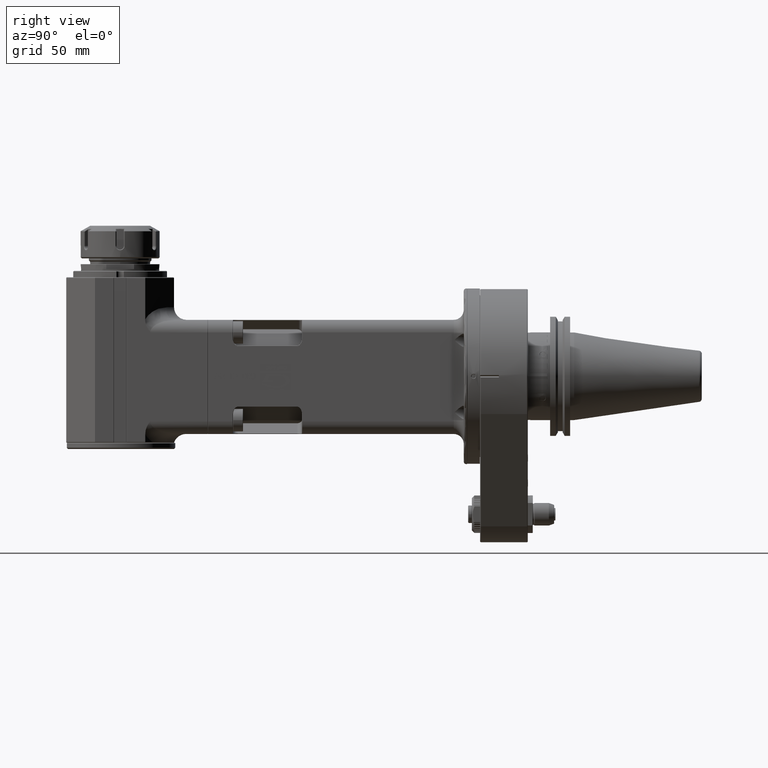
[diagram: clean part render]
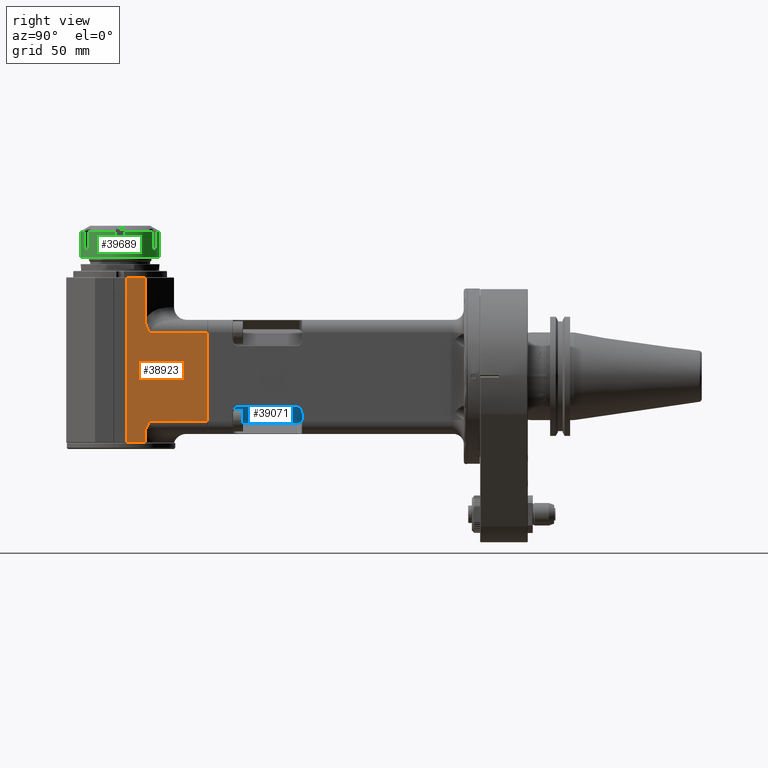
[diagram: same view with three faces highlighted in distinct colors, each labeled with its STEP entity id]
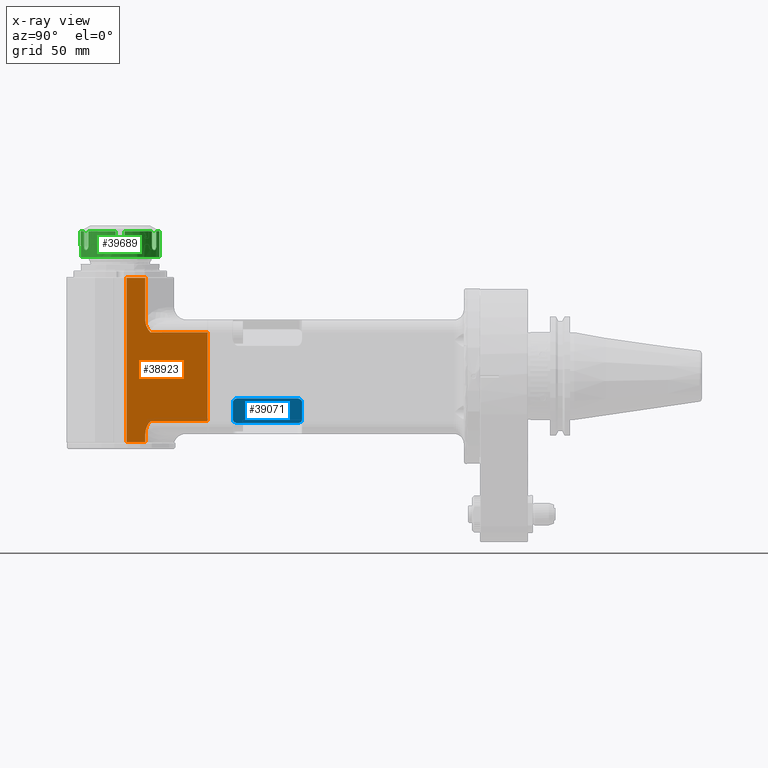
[diagram: x-ray of the same camera — body ghosted, the three highlighted faces saturated]
A machine part, right view with three faces highlighted in distinct colors.
The next image is the same camera in x-ray (body ghosted, the three faces saturated) — at least one of them is partly hidden behind the body in this view.
Their STEP definitions:

[orange] entity #38923 — the highlighted planar face has unit normal (1, 0, -0).
#1005=B_SPLINE_CURVE_WITH_KNOTS('',3,(#61866,#61867,#61868,#61869,#61870,
#61871,#61872,#61873,#61874,#61875,#61876,#61877,#61878,#61879,#61880,#61881,
#61882,#61883,#61884,#61885,#61886,#61887,#61888,#61889,#61890,#61891,#61892,
#61893,#61894,#61895,#61896,#61897,#61898,#61899,#61900,#61901,#61902,#61903,
#61904,#61905,#61906,#61907,#61908,#61909,#61910,#61911,#61912,#61913,#61914,
#61915,#61916,#61917,#61918,#61919,#61920,#61921,#61922,#61923,#61924,#61925,
#61926,#61927,#61928,#61929,#61930,#61931,#61932,#61933,#61934,#61935,#61936,
#61937,#61938,#61939,#61940,#61941,#61942,#61943,#61944,#61945,#61946,#61947,
#61948,#61949,#61950,#61951,#61952,#61953,#61954,#61955,#61956,#61957,#61958,
#61959,#61960,#61961,#61962,#61963,#61964,#61965),.UNSPECIFIED.,.F.,.F.,
(4,3,3,3,3,3,3,3,3,3,3,3,3,3,3,3,3,3,3,3,3,3,3,3,3,3,3,3,3,3,3,3,3,4),(0.,
0.05,0.1,0.15,0.169998769365105,0.2,0.25,0.3,0.35,0.371493647290823,0.4,
0.44197896258168,0.45,0.5,0.55,0.585493620575733,0.6,0.626985457176115,
0.65,0.675,0.7,0.726148783400618,0.75,0.77463575109164,0.796982197235437,
0.8,0.846893567940967,0.85,0.884300240257056,0.9,0.933191122290517,0.95,
0.981823261432821,1.),.UNSPECIFIED.);
#1006=B_SPLINE_CURVE_WITH_KNOTS('',3,(#61970,#61971,#61972,#61973,#61974,
#61975,#61976,#61977,#61978,#61979,#61980,#61981,#61982,#61983,#61984,#61985,
#61986,#61987,#61988,#61989,#61990,#61991,#61992,#61993,#61994,#61995,#61996,
#61997,#61998,#61999,#62000,#62001,#62002,#62003,#62004,#62005,#62006,#62007,
#62008,#62009,#62010,#62011,#62012,#62013,#62014,#62015,#62016,#62017,#62018,
#62019,#62020,#62021,#62022,#62023,#62024,#62025,#62026,#62027,#62028,#62029,
#62030,#62031,#62032,#62033,#62034,#62035,#62036,#62037,#62038,#62039,#62040,
#62041,#62042,#62043,#62044,#62045,#62046,#62047,#62048,#62049,#62050,#62051,
#62052,#62053,#62054,#62055,#62056,#62057,#62058,#62059,#62060,#62061,#62062,
#62063,#62064,#62065,#62066),.UNSPECIFIED.,.F.,.F.,(4,3,3,3,3,3,3,3,3,3,
3,3,3,3,3,3,3,3,3,3,3,3,3,3,3,3,3,3,3,3,3,3,4),(2.49694212659541E-11,0.0347750507592252,
0.05,0.0852990601411845,0.1,0.136871344078224,0.15,0.194542851967867,0.2,
0.218509755875437,0.244861576484745,0.25,0.277303247226577,0.3,0.326758181118669,
0.35,0.378253217125548,0.4,0.432810547298455,0.45,0.5,0.55,0.594590287880488,
0.6,0.65,0.694046624015776,0.7,0.75,0.8,0.85,0.9,0.95,1.),.UNSPECIFIED.);
#2258=LINE('',#58580,#5290);
#2537=LINE('',#61837,#5569);
#2549=LINE('',#61859,#5581);
#2550=LINE('',#61862,#5582);
#2551=LINE('',#61864,#5583);
#2552=LINE('',#61966,#5584);
#2553=LINE('',#61968,#5585);
#2554=LINE('',#62067,#5586);
#5290=VECTOR('',#46255,70.99999985232);
#5569=VECTOR('',#47112,14.8);
#5581=VECTOR('',#47130,131.);
#5582=VECTOR('',#47133,14.8);
#5583=VECTOR('',#47134,6.07989039740604);
#5584=VECTOR('',#47135,45.6578613092001);
#5585=VECTOR('',#47136,45.6578532320314);
#5586=VECTOR('',#47137,33.0798929774);
#9307=FACE_OUTER_BOUND('',#11781,.T.);
#11781=EDGE_LOOP('',(#27408,#27409,#27410,#27411,#27412,#27413,#27414,#27415,
#27416,#27417));
#16236=VERTEX_POINT('',#58573);
#16238=VERTEX_POINT('',#58579);
#16632=VERTEX_POINT('',#61834);
#16633=VERTEX_POINT('',#61836);
#16640=VERTEX_POINT('',#61857);
#16641=VERTEX_POINT('',#61861);
#16642=VERTEX_POINT('',#61863);
#16643=VERTEX_POINT('',#61865);
#16644=VERTEX_POINT('',#61967);
#16645=VERTEX_POINT('',#61969);
#20193=EDGE_CURVE('',#16236,#16238,#2258,.T.);
#20736=EDGE_CURVE('',#16633,#16632,#2537,.T.);
#20748=EDGE_CURVE('',#16632,#16640,#2549,.T.);
#20749=EDGE_CURVE('',#16641,#16640,#2550,.T.);
#20750=EDGE_CURVE('',#16642,#16641,#2551,.T.);
#20751=EDGE_CURVE('',#16642,#16643,#1005,.T.);
#20752=EDGE_CURVE('',#16643,#16238,#2552,.T.);
#20753=EDGE_CURVE('',#16236,#16644,#2553,.T.);
#20754=EDGE_CURVE('',#16644,#16645,#1006,.T.);
#20755=EDGE_CURVE('',#16633,#16645,#2554,.T.);
#27408=ORIENTED_EDGE('',*,*,#20736,.T.);
#27409=ORIENTED_EDGE('',*,*,#20748,.T.);
#27410=ORIENTED_EDGE('',*,*,#20749,.F.);
#27411=ORIENTED_EDGE('',*,*,#20750,.F.);
#27412=ORIENTED_EDGE('',*,*,#20751,.T.);
#27413=ORIENTED_EDGE('',*,*,#20752,.T.);
#27414=ORIENTED_EDGE('',*,*,#20193,.F.);
#27415=ORIENTED_EDGE('',*,*,#20753,.T.);
#27416=ORIENTED_EDGE('',*,*,#20754,.T.);
#27417=ORIENTED_EDGE('',*,*,#20755,.F.);
#37769=PLANE('',#41764);
#38923=ADVANCED_FACE('',(#9307),#37769,.T.);
#41764=AXIS2_PLACEMENT_3D('',#61860,#47131,#47132);
#46255=DIRECTION('',(0.,0.,-1.));
#47112=DIRECTION('',(0.,-1.,0.));
#47130=DIRECTION('',(0.,0.,-1.));
#47131=DIRECTION('center_axis',(1.,0.,0.));
#47132=DIRECTION('ref_axis',(0.,0.,-1.));
#47133=DIRECTION('',(0.,-1.,0.));
#47134=DIRECTION('',(2.85207646252398E-8,1.14078608179399E-7,-0.999999999999993));
#47135=DIRECTION('',(3.35701694183999E-8,0.999999999999998,-5.74699868548999E-8));
#47136=DIRECTION('',(-1.22029999403696E-7,-0.99999999999997,-2.12339582944294E-7));
#47137=DIRECTION('',(1.700506319271E-9,6.802089715873E-9,-1.));
#58573=CARTESIAN_POINT('',(44.4999999988207,-217.199999999051,34.9999999273133));
#58579=CARTESIAN_POINT('',(44.4999999987437,-217.199999998758,-35.9999999261601));
#58580=CARTESIAN_POINT('',(44.49999999817,-217.1999999982,34.99999992616));
#61834=CARTESIAN_POINT('',(44.5,-281.8,78.5));
#61836=CARTESIAN_POINT('',(44.5,-267.,78.5));
#61837=CARTESIAN_POINT('',(44.5,-267.,78.5));
#61857=CARTESIAN_POINT('',(44.5,-281.8,-52.5));
#61859=CARTESIAN_POINT('',(44.5,-281.8,78.5));
#61860=CARTESIAN_POINT('Origin',(44.5,-330.,79.));
#61861=CARTESIAN_POINT('',(44.5,-267.,-52.5));
#61862=CARTESIAN_POINT('',(44.5,-267.,-52.5));
#61863=CARTESIAN_POINT('',(44.5000004349639,-267.000000062127,-46.4201096455839));
#61864=CARTESIAN_POINT('',(44.4999998266,-267.0000006936,-46.42010960259));
#61865=CARTESIAN_POINT('',(44.4999974424952,-262.857861307402,-35.9999973022689));
#61866=CARTESIAN_POINT('Ctrl Pts',(44.5000007564749,-266.999999763719,-46.4201096025948));
#61867=CARTESIAN_POINT('Ctrl Pts',(44.5000027304285,-267.000000628573,-46.205718755625));
#61868=CARTESIAN_POINT('Ctrl Pts',(44.5000074110613,-266.995844114103,-45.9923590461118));
#61869=CARTESIAN_POINT('Ctrl Pts',(44.5000082900646,-266.987573846017,-45.7798898736026));
#61870=CARTESIAN_POINT('Ctrl Pts',(44.500009169068,-266.979303577931,-45.5674207010935));
#61871=CARTESIAN_POINT('Ctrl Pts',(44.5000097908512,-266.966916139206,-45.3558421391898));
#61872=CARTESIAN_POINT('Ctrl Pts',(44.5000085010047,-266.950480606558,-45.1455612222609));
#61873=CARTESIAN_POINT('Ctrl Pts',(44.5000072111581,-266.934045073909,-44.9352803053321));
#61874=CARTESIAN_POINT('Ctrl Pts',(44.5000033420384,-266.913561901042,-44.7262969257466));
#61875=CARTESIAN_POINT('Ctrl Pts',(44.5000016482769,-266.889133044319,-44.5189101119877));
#61876=CARTESIAN_POINT('Ctrl Pts',(44.5000009708139,-266.87936210289,-44.4359604908331));
#61877=CARTESIAN_POINT('Ctrl Pts',(44.4999998647812,-266.868959392183,-44.3532667651955));
#61878=CARTESIAN_POINT('Ctrl Pts',(44.4999995989522,-266.857931930927,-44.2708353194863));
#61879=CARTESIAN_POINT('Ctrl Pts',(44.4999992001678,-266.841389042593,-44.1471754697656));
#61880=CARTESIAN_POINT('Ctrl Pts',(44.500000697567,-266.823440237394,-44.0241059485629));
#61881=CARTESIAN_POINT('Ctrl Pts',(44.500001990906,-266.804103280577,-43.9016527635663));
#61882=CARTESIAN_POINT('Ctrl Pts',(44.5000041463826,-266.771876341201,-43.6975724935154));
#61883=CARTESIAN_POINT('Ctrl Pts',(44.5000077994028,-266.735797103315,-43.495202151498));
#61884=CARTESIAN_POINT('Ctrl Pts',(44.5000091492184,-266.695937518602,-43.2945921651448));
#61885=CARTESIAN_POINT('Ctrl Pts',(44.5000104990341,-266.65607793389,-43.0939821787916));
#61886=CARTESIAN_POINT('Ctrl Pts',(44.5000114155433,-266.612436645455,-42.8951327910476));
#61887=CARTESIAN_POINT('Ctrl Pts',(44.5000105531493,-266.565158082003,-42.6983802684436));
#61888=CARTESIAN_POINT('Ctrl Pts',(44.5000096907553,-266.517879518552,-42.5016277458397));
#61889=CARTESIAN_POINT('Ctrl Pts',(44.50000672844,-266.46696382476,-42.3069720234267));
#61890=CARTESIAN_POINT('Ctrl Pts',(44.5000036995927,-266.412576599075,-42.1146807861241));
#61891=CARTESIAN_POINT('Ctrl Pts',(44.5000023975732,-266.389197002156,-42.0320199854902));
#61892=CARTESIAN_POINT('Ctrl Pts',(44.5000003323021,-266.365175349859,-41.9497972364521));
#61893=CARTESIAN_POINT('Ctrl Pts',(44.4999990461978,-266.340524870293,-41.8680211413534));
#61894=CARTESIAN_POINT('Ctrl Pts',(44.4999973404778,-266.307831709591,-41.7595640619884));
#61895=CARTESIAN_POINT('Ctrl Pts',(44.4999969981815,-266.274032473754,-41.6518927900085));
#61896=CARTESIAN_POINT('Ctrl Pts',(44.4999969281562,-266.239153705443,-41.5450354247313));
#61897=CARTESIAN_POINT('Ctrl Pts',(44.4999968250358,-266.187790610179,-41.3876753659292));
#61898=CARTESIAN_POINT('Ctrl Pts',(44.4999968814174,-266.134087584078,-41.2320774771068));
#61899=CARTESIAN_POINT('Ctrl Pts',(44.4999982617065,-266.078034466142,-41.0780605411899));
#61900=CARTESIAN_POINT('Ctrl Pts',(44.4999985254422,-266.067324240621,-41.0486320958433));
#61901=CARTESIAN_POINT('Ctrl Pts',(44.4999988059873,-266.056528074285,-41.0192614166715));
#61902=CARTESIAN_POINT('Ctrl Pts',(44.4999990684854,-266.045645695584,-40.9899473116182));
#61903=CARTESIAN_POINT('Ctrl Pts',(44.5000007047955,-265.977809216751,-40.8072146828793));
#61904=CARTESIAN_POINT('Ctrl Pts',(44.5000048763909,-265.90662994347,-40.6266779026873));
#61905=CARTESIAN_POINT('Ctrl Pts',(44.5000072866566,-265.83213469345,-40.4483119789908));
#61906=CARTESIAN_POINT('Ctrl Pts',(44.5000096969223,-265.757639443429,-40.2699460552944));
#61907=CARTESIAN_POINT('Ctrl Pts',(44.5000105359121,-265.679828056508,-40.0937510189166));
#61908=CARTESIAN_POINT('Ctrl Pts',(44.5000100548527,-265.598721785479,-39.9197012255386));
#61909=CARTESIAN_POINT('Ctrl Pts',(44.5000097133618,-265.541146681274,-39.7961480789897));
#61910=CARTESIAN_POINT('Ctrl Pts',(44.5000069730119,-265.481909685742,-39.6736798763433));
#61911=CARTESIAN_POINT('Ctrl Pts',(44.5000010823453,-265.420950146673,-39.552172218156));
#61912=CARTESIAN_POINT('Ctrl Pts',(44.4999986748072,-265.396035748285,-39.502511570298));
#61913=CARTESIAN_POINT('Ctrl Pts',(44.4999956543065,-265.370833253917,-39.4530115796184));
#61914=CARTESIAN_POINT('Ctrl Pts',(44.4999918693912,-265.34533737885,-39.4036668120134));
#61915=CARTESIAN_POINT('Ctrl Pts',(44.4999848285117,-265.297908739032,-39.3118733276348));
#61916=CARTESIAN_POINT('Ctrl Pts',(44.4999809400309,-265.249472434277,-39.2206045241007));
#61917=CARTESIAN_POINT('Ctrl Pts',(44.4999769253941,-265.200215679898,-39.1302286466257));
#61918=CARTESIAN_POINT('Ctrl Pts',(44.4999735015117,-265.158207064827,-39.0531515940186));
#61919=CARTESIAN_POINT('Ctrl Pts',(44.499970120674,-265.115602340323,-38.9767234816036));
#61920=CARTESIAN_POINT('Ctrl Pts',(44.4999675434708,-265.072537370091,-38.9011503216958));
#61921=CARTESIAN_POINT('Ctrl Pts',(44.4999647439332,-265.025757198785,-38.8190574896916));
#61922=CARTESIAN_POINT('Ctrl Pts',(44.4999641567599,-264.97843553774,-38.7379705922601));
#61923=CARTESIAN_POINT('Ctrl Pts',(44.4999645852977,-264.93082642784,-38.658245271505));
#61924=CARTESIAN_POINT('Ctrl Pts',(44.4999650138354,-264.88321731794,-38.5785199507499));
#61925=CARTESIAN_POINT('Ctrl Pts',(44.4999665805752,-264.835320970881,-38.5001562201717));
#61926=CARTESIAN_POINT('Ctrl Pts',(44.4999726041023,-264.787425511516,-38.4234670834248));
#61927=CARTESIAN_POINT('Ctrl Pts',(44.4999789044185,-264.737329191803,-38.3432539783858));
#61928=CARTESIAN_POINT('Ctrl Pts',(44.4999817253017,-264.687217268145,-38.2648911756912));
#61929=CARTESIAN_POINT('Ctrl Pts',(44.4999851427558,-264.636951526142,-38.1879862531029));
#61930=CARTESIAN_POINT('Ctrl Pts',(44.4999882599348,-264.59110239115,-38.1178385931483));
#61931=CARTESIAN_POINT('Ctrl Pts',(44.4999917123557,-264.545124669747,-38.0489042384266));
#61932=CARTESIAN_POINT('Ctrl Pts',(44.499994515615,-264.498885080685,-37.9809099702898));
#61933=CARTESIAN_POINT('Ctrl Pts',(44.4999974110815,-264.451124539752,-37.9106791768837));
#61934=CARTESIAN_POINT('Ctrl Pts',(44.4999990010577,-264.403083334157,-37.8414536008501));
#61935=CARTESIAN_POINT('Ctrl Pts',(44.5000003550854,-264.354550788725,-37.7728678393772));
#61936=CARTESIAN_POINT('Ctrl Pts',(44.5000015832887,-264.310528184798,-37.7106554871219));
#61937=CARTESIAN_POINT('Ctrl Pts',(44.5000024683379,-264.266100807378,-37.6489699500852));
#61938=CARTESIAN_POINT('Ctrl Pts',(44.5000002609083,-264.22108502073,-37.5875643002698));
#61939=CARTESIAN_POINT('Ctrl Pts',(44.4999999628033,-264.215005809542,-37.5792717002483));
#61940=CARTESIAN_POINT('Ctrl Pts',(44.4999996043371,-264.208915830344,-37.570984241967));
#61941=CARTESIAN_POINT('Ctrl Pts',(44.4999991858526,-264.20281461133,-37.562701364674));
#61942=CARTESIAN_POINT('Ctrl Pts',(44.4999926830313,-264.108007909021,-37.4339939243977));
#61943=CARTESIAN_POINT('Ctrl Pts',(44.4999842396383,-264.010527748767,-37.3063454068812));
#61944=CARTESIAN_POINT('Ctrl Pts',(44.4999802719591,-263.910397402375,-37.1799571070099));
#61945=CARTESIAN_POINT('Ctrl Pts',(44.4999800091229,-263.903764336653,-37.1715846012731));
#61946=CARTESIAN_POINT('Ctrl Pts',(44.4999797628899,-263.89711963148,-37.1632176094147));
#61947=CARTESIAN_POINT('Ctrl Pts',(44.4999795338818,-263.890463289411,-37.1548561828424));
#61948=CARTESIAN_POINT('Ctrl Pts',(44.4999770052469,-263.816966065631,-37.0625319552817));
#61949=CARTESIAN_POINT('Ctrl Pts',(44.4999774348257,-263.74205340931,-36.9708840042916));
#61950=CARTESIAN_POINT('Ctrl Pts',(44.4999784814314,-263.665861939572,-36.8801578839403));
#61951=CARTESIAN_POINT('Ctrl Pts',(44.4999789604793,-263.63098790486,-36.8386311109133));
#61952=CARTESIAN_POINT('Ctrl Pts',(44.4999796155879,-263.595846247004,-36.797296814354));
#61953=CARTESIAN_POINT('Ctrl Pts',(44.4999803926571,-263.560451484486,-36.756175175811));
#61954=CARTESIAN_POINT('Ctrl Pts',(44.4999820354717,-263.48562283039,-36.6692392381906));
#61955=CARTESIAN_POINT('Ctrl Pts',(44.4999846005122,-263.409661408713,-36.5832558016274));
#61956=CARTESIAN_POINT('Ctrl Pts',(44.4999888031279,-263.332764404046,-36.4983942257175));
#61957=CARTESIAN_POINT('Ctrl Pts',(44.4999909314456,-263.293821691102,-36.4554180395187));
#61958=CARTESIAN_POINT('Ctrl Pts',(44.499993421718,-263.254639290837,-36.4127287841906));
#61959=CARTESIAN_POINT('Ctrl Pts',(44.4999958992339,-263.215244286307,-36.3703436020391));
#61960=CARTESIAN_POINT('Ctrl Pts',(44.5000005897693,-263.140660036843,-36.2900982248166));
#61961=CARTESIAN_POINT('Ctrl Pts',(44.5000046991611,-263.065314260903,-36.2109498724042));
#61962=CARTESIAN_POINT('Ctrl Pts',(44.5000026752919,-262.989157581177,-36.1328390789995));
#61963=CARTESIAN_POINT('Ctrl Pts',(44.5000015193029,-262.945658580911,-36.0882239324976));
#61964=CARTESIAN_POINT('Ctrl Pts',(44.4999984335575,-262.901894833736,-36.0439472070703));
#61965=CARTESIAN_POINT('Ctrl Pts',(44.4999953966456,-262.857861307405,-35.9999973024068));
#61966=CARTESIAN_POINT('',(44.49999846542,-262.8578613074,-35.9999973022));
#61967=CARTESIAN_POINT('',(44.4999832815842,-262.857853230419,34.9999902324594));
#61968=CARTESIAN_POINT('',(44.49999999817,-217.1999999982,34.99999992616));
#61969=CARTESIAN_POINT('',(44.5000001179918,-266.999999706981,45.4201070342707));
#61970=CARTESIAN_POINT('Ctrl Pts',(44.4999832815842,-262.857853230418,34.9999902324594));
#61971=CARTESIAN_POINT('Ctrl Pts',(44.4999918421223,-262.942958432712,35.085069775626));
#61972=CARTESIAN_POINT('Ctrl Pts',(44.5000006329318,-263.027021349055,35.1713012951591));
#61973=CARTESIAN_POINT('Ctrl Pts',(44.5000011977094,-263.110077855193,35.2587327924837));
#61974=CARTESIAN_POINT('Ctrl Pts',(44.500001444976,-263.146441025436,35.2970113882214));
#61975=CARTESIAN_POINT('Ctrl Pts',(44.5000000921225,-263.182611127193,35.3355198260365));
#61976=CARTESIAN_POINT('Ctrl Pts',(44.4999983250017,-263.21859387123,35.3742617426));
#61977=CARTESIAN_POINT('Ctrl Pts',(44.4999942279302,-263.302019899504,35.4640849151528));
#61978=CARTESIAN_POINT('Ctrl Pts',(44.4999889583917,-263.384431668572,35.5551600786504));
#61979=CARTESIAN_POINT('Ctrl Pts',(44.4999859712035,-263.465628009027,35.6473995311393));
#61980=CARTESIAN_POINT('Ctrl Pts',(44.4999847271342,-263.499443711571,35.6858143398686));
#61981=CARTESIAN_POINT('Ctrl Pts',(44.4999837382397,-263.533048588003,35.7244304837094));
#61982=CARTESIAN_POINT('Ctrl Pts',(44.4999826740241,-263.566428104524,35.7632390208574));
#61983=CARTESIAN_POINT('Ctrl Pts',(44.4999800048711,-263.65014708104,35.8605744932898));
#61984=CARTESIAN_POINT('Ctrl Pts',(44.4999765857073,-263.73244955321,35.9591250155143));
#61985=CARTESIAN_POINT('Ctrl Pts',(44.4999750830577,-263.813216433587,36.0586900831379));
#61986=CARTESIAN_POINT('Ctrl Pts',(44.4999745480142,-263.841974826015,36.0941418831017));
#61987=CARTESIAN_POINT('Ctrl Pts',(44.4999742778737,-263.870538645357,36.1297218408945));
#61988=CARTESIAN_POINT('Ctrl Pts',(44.4999744806251,-263.8989029186,36.16541937049));
#61989=CARTESIAN_POINT('Ctrl Pts',(44.4999751685193,-263.995137112851,36.2865338079362));
#61990=CARTESIAN_POINT('Ctrl Pts',(44.4999807035004,-264.089071150096,36.4090110932533));
#61991=CARTESIAN_POINT('Ctrl Pts',(44.4999893374302,-264.180644260091,36.5326503496667));
#61992=CARTESIAN_POINT('Ctrl Pts',(44.4999903952124,-264.191863299622,36.5477979591039));
#61993=CARTESIAN_POINT('Ctrl Pts',(44.4999914925349,-264.203046883997,36.5629629485527));
#61994=CARTESIAN_POINT('Ctrl Pts',(44.4999926201371,-264.214194887113,36.5781448984348));
#61995=CARTESIAN_POINT('Ctrl Pts',(44.4999964447798,-264.252007095061,36.6296395957339));
#61996=CARTESIAN_POINT('Ctrl Pts',(44.4999992984772,-264.289407128545,36.6813359816203));
#61997=CARTESIAN_POINT('Ctrl Pts',(44.5000007820074,-264.326474578557,36.7333361958471));
#61998=CARTESIAN_POINT('Ctrl Pts',(44.5000028940677,-264.379246468135,36.80736744327));
#61999=CARTESIAN_POINT('Ctrl Pts',(44.5000024697069,-264.431345854383,36.8820129442369));
#62000=CARTESIAN_POINT('Ctrl Pts',(44.5000010621374,-264.482980764814,36.9576074988017));
#62001=CARTESIAN_POINT('Ctrl Pts',(44.5000007876711,-264.493049216703,36.9723479162688));
#62002=CARTESIAN_POINT('Ctrl Pts',(44.500000459473,-264.503099895912,36.9871245301302));
#62003=CARTESIAN_POINT('Ctrl Pts',(44.5000000638395,-264.513134180539,37.0019399834461));
#62004=CARTESIAN_POINT('Ctrl Pts',(44.4999979616229,-264.566451808622,37.0806625689736));
#62005=CARTESIAN_POINT('Ctrl Pts',(44.4999946409761,-264.619308827795,37.1604755921907));
#62006=CARTESIAN_POINT('Ctrl Pts',(44.4999912325774,-264.671875640059,37.241731242969));
#62007=CARTESIAN_POINT('Ctrl Pts',(44.4999883992301,-264.715573590422,37.3092777659834));
#62008=CARTESIAN_POINT('Ctrl Pts',(44.4999854686929,-264.759070414921,37.3778218393308));
#62009=CARTESIAN_POINT('Ctrl Pts',(44.4999800745239,-264.802443821298,37.4475841265931));
#62010=CARTESIAN_POINT('Ctrl Pts',(44.4999737151054,-264.853578601464,37.5298298970103));
#62011=CARTESIAN_POINT('Ctrl Pts',(44.499970780711,-264.904555020718,37.6137533087545));
#62012=CARTESIAN_POINT('Ctrl Pts',(44.4999688406378,-264.955107085748,37.6990717232544));
#62013=CARTESIAN_POINT('Ctrl Pts',(44.4999671555148,-264.999015972315,37.7731782228051));
#62014=CARTESIAN_POINT('Ctrl Pts',(44.4999662139985,-265.042605046711,37.8483365106343));
#62015=CARTESIAN_POINT('Ctrl Pts',(44.4999666730921,-265.085718255732,37.9243352229224));
#62016=CARTESIAN_POINT('Ctrl Pts',(44.4999672311755,-265.138127529794,38.0167207685847));
#62017=CARTESIAN_POINT('Ctrl Pts',(44.4999690161886,-265.189831892755,38.110351674126));
#62018=CARTESIAN_POINT('Ctrl Pts',(44.4999718526821,-265.240617311208,38.204899238918));
#62019=CARTESIAN_POINT('Ctrl Pts',(44.4999740359594,-265.279707354064,38.2776734420716));
#62020=CARTESIAN_POINT('Ctrl Pts',(44.499976895448,-265.318253548634,38.350989827361));
#62021=CARTESIAN_POINT('Ctrl Pts',(44.4999820529442,-265.356171225427,38.4246819949684));
#62022=CARTESIAN_POINT('Ctrl Pts',(44.4999898343376,-265.413379674835,38.5358653532042));
#62023=CARTESIAN_POINT('Ctrl Pts',(44.4999960996362,-265.469148268292,38.647918771417));
#62024=CARTESIAN_POINT('Ctrl Pts',(44.500000635757,-265.52350953451,38.7608882615185));
#62025=CARTESIAN_POINT('Ctrl Pts',(44.5000030122316,-265.551989413433,38.8200730013875));
#62026=CARTESIAN_POINT('Ctrl Pts',(44.5000048494622,-265.580082732535,38.879509284581));
#62027=CARTESIAN_POINT('Ctrl Pts',(44.5000058044206,-265.607792611779,38.9392083117584));
#62028=CARTESIAN_POINT('Ctrl Pts',(44.500008582166,-265.688394012316,39.1128584803065));
#62029=CARTESIAN_POINT('Ctrl Pts',(44.5000085076619,-265.765755507176,39.2887156323959));
#62030=CARTESIAN_POINT('Ctrl Pts',(44.500005243604,-265.839829624351,39.4667675863651));
#62031=CARTESIAN_POINT('Ctrl Pts',(44.5000019795462,-265.913903741527,39.6448195403342));
#62032=CARTESIAN_POINT('Ctrl Pts',(44.4999954529448,-265.984690598219,39.8250662872214));
#62033=CARTESIAN_POINT('Ctrl Pts',(44.4999903292433,-266.052137671054,40.0074712689371));
#62034=CARTESIAN_POINT('Ctrl Pts',(44.4999857598968,-266.112287358942,40.1701410818478));
#62035=CARTESIAN_POINT('Ctrl Pts',(44.4999809189006,-266.169780359282,40.3345275351604));
#62036=CARTESIAN_POINT('Ctrl Pts',(44.4999779554844,-266.2246253695,40.5007877265857));
#62037=CARTESIAN_POINT('Ctrl Pts',(44.4999775959615,-266.231279188763,40.520958481593));
#62038=CARTESIAN_POINT('Ctrl Pts',(44.4999772513977,-266.237893975205,40.5411568363948));
#62039=CARTESIAN_POINT('Ctrl Pts',(44.4999769148089,-266.244469696272,40.561383087882));
#62040=CARTESIAN_POINT('Ctrl Pts',(44.4999738038409,-266.30524669255,40.7483269680769));
#62041=CARTESIAN_POINT('Ctrl Pts',(44.4999745271867,-266.362691737732,40.9376520802568));
#62042=CARTESIAN_POINT('Ctrl Pts',(44.4999787405163,-266.416686106663,41.129290511347));
#62043=CARTESIAN_POINT('Ctrl Pts',(44.4999824521753,-266.464251500008,41.2981110297711));
#62044=CARTESIAN_POINT('Ctrl Pts',(44.4999894029705,-266.509138411695,41.468727019252));
#62045=CARTESIAN_POINT('Ctrl Pts',(44.4999999896113,-266.551236390448,41.6409550446501));
#62046=CARTESIAN_POINT('Ctrl Pts',(44.5000014205099,-266.556926386022,41.6642335186109));
#62047=CARTESIAN_POINT('Ctrl Pts',(44.500002914773,-266.562565445369,41.6875414096592));
#62048=CARTESIAN_POINT('Ctrl Pts',(44.5000044130728,-266.568153259702,41.7108783403673));
#62049=CARTESIAN_POINT('Ctrl Pts',(44.5000169966874,-266.615083055063,41.9068757943323));
#62050=CARTESIAN_POINT('Ctrl Pts',(44.5000328910465,-266.658399839591,42.1049186713577));
#62051=CARTESIAN_POINT('Ctrl Pts',(44.5000472622114,-266.697968069924,42.3047195665426));
#62052=CARTESIAN_POINT('Ctrl Pts',(44.5000616333762,-266.737536300258,42.5045204617275));
#62053=CARTESIAN_POINT('Ctrl Pts',(44.50007295957,-266.773357099263,42.7060791711519));
#62054=CARTESIAN_POINT('Ctrl Pts',(44.5000795453799,-266.805354400518,42.9093414141849));
#62055=CARTESIAN_POINT('Ctrl Pts',(44.5000861311899,-266.837351701773,43.1126036572178));
#62056=CARTESIAN_POINT('Ctrl Pts',(44.5000880542181,-266.865525456952,43.3175694435845));
#62057=CARTESIAN_POINT('Ctrl Pts',(44.5000842481136,-266.889788371942,43.5241745214027));
#62058=CARTESIAN_POINT('Ctrl Pts',(44.5000804420092,-266.914051286933,43.7307795992208));
#62059=CARTESIAN_POINT('Ctrl Pts',(44.5000722860919,-266.934402273835,43.9390241189578));
#62060=CARTESIAN_POINT('Ctrl Pts',(44.5000606196237,-266.950737932126,44.1486278101111));
#62061=CARTESIAN_POINT('Ctrl Pts',(44.5000489531555,-266.967073590417,44.3582315012645));
#62062=CARTESIAN_POINT('Ctrl Pts',(44.5000343124654,-266.979393569753,44.5691944689703));
#62063=CARTESIAN_POINT('Ctrl Pts',(44.500023317031,-266.98762383144,44.7811488645335));
#62064=CARTESIAN_POINT('Ctrl Pts',(44.5000123215966,-266.995854093127,44.9931032600966));
#62065=CARTESIAN_POINT('Ctrl Pts',(44.5000018139995,-266.999997644712,45.206049008134));
#62066=CARTESIAN_POINT('Ctrl Pts',(44.5000003915053,-266.999999439738,45.420107022605));
#62067=CARTESIAN_POINT('',(44.5,-267.,78.5));

[blue] entity #39071 — the highlighted planar face has unit normal (-0.7071, -0, 0.7071).
#2724=LINE('',#64223,#5756);
#2727=LINE('',#64231,#5759);
#2730=LINE('',#64239,#5762);
#2733=LINE('',#64249,#5765);
#5756=VECTOR('',#47739,19.9999999999987);
#5759=VECTOR('',#47748,47.);
#5762=VECTOR('',#47757,19.9999999999987);
#5765=VECTOR('',#47768,47.);
#9455=FACE_OUTER_BOUND('',#11942,.T.);
#11942=EDGE_LOOP('',(#28084,#28085,#28086,#28087,#28088,#28089,#28090,#28091));
#14462=CIRCLE('',#41982,4.);
#14463=CIRCLE('',#41985,4.);
#14465=CIRCLE('',#41989,4.);
#14466=CIRCLE('',#41992,4.);
#16811=VERTEX_POINT('',#64220);
#16812=VERTEX_POINT('',#64222);
#16813=VERTEX_POINT('',#64226);
#16814=VERTEX_POINT('',#64230);
#16815=VERTEX_POINT('',#64234);
#16816=VERTEX_POINT('',#64238);
#16818=VERTEX_POINT('',#64244);
#16819=VERTEX_POINT('',#64248);
#21046=EDGE_CURVE('',#16811,#16812,#2724,.T.);
#21048=EDGE_CURVE('',#16813,#16812,#14462,.T.);
#21050=EDGE_CURVE('',#16814,#16813,#2727,.T.);
#21052=EDGE_CURVE('',#16815,#16814,#14463,.T.);
#21054=EDGE_CURVE('',#16816,#16815,#2730,.T.);
#21057=EDGE_CURVE('',#16818,#16816,#14465,.T.);
#21059=EDGE_CURVE('',#16818,#16819,#2733,.T.);
#21061=EDGE_CURVE('',#16811,#16819,#14466,.T.);
#28084=ORIENTED_EDGE('',*,*,#21048,.T.);
#28085=ORIENTED_EDGE('',*,*,#21046,.F.);
#28086=ORIENTED_EDGE('',*,*,#21061,.T.);
#28087=ORIENTED_EDGE('',*,*,#21059,.F.);
#28088=ORIENTED_EDGE('',*,*,#21057,.T.);
#28089=ORIENTED_EDGE('',*,*,#21054,.T.);
#28090=ORIENTED_EDGE('',*,*,#21052,.T.);
#28091=ORIENTED_EDGE('',*,*,#21050,.T.);
#37847=PLANE('',#41993);
#39071=ADVANCED_FACE('',(#9455),#37847,.F.);
#41982=AXIS2_PLACEMENT_3D('',#64227,#47743,#47744);
#41985=AXIS2_PLACEMENT_3D('',#64235,#47752,#47753);
#41989=AXIS2_PLACEMENT_3D('',#64245,#47763,#47764);
#41992=AXIS2_PLACEMENT_3D('',#64252,#47772,#47773);
#41993=AXIS2_PLACEMENT_3D('',#64253,#47774,#47775);
#47739=DIRECTION('',(-0.707106781186548,0.,-0.707106781186548));
#47743=DIRECTION('center_axis',(0.707106781186548,0.,-0.707106781186548));
#47744=DIRECTION('ref_axis',(-0.707106781186548,0.,-0.707106781186548));
#47748=DIRECTION('',(0.,1.,0.));
#47752=DIRECTION('center_axis',(0.707106781186548,0.,-0.707106781186548));
#47753=DIRECTION('ref_axis',(0.,-1.,0.));
#47757=DIRECTION('',(-0.707106781186548,0.,-0.707106781186548));
#47763=DIRECTION('center_axis',(0.707106781186548,0.,-0.707106781186548));
#47764=DIRECTION('ref_axis',(0.707106781186548,0.,0.707106781186548));
#47768=DIRECTION('',(0.,1.,0.));
#47772=DIRECTION('center_axis',(0.707106781186548,0.,-0.707106781186548));
#47773=DIRECTION('ref_axis',(0.,1.,0.));
#47774=DIRECTION('center_axis',(-0.707106781186548,0.,0.707106781186548));
#47775=DIRECTION('ref_axis',(-0.707106781186548,0.,-0.707106781186548));
#64220=CARTESIAN_POINT('',(34.64823227814,-142.,-20.50609665441));
#64222=CARTESIAN_POINT('',(20.50609665441,-142.,-34.64823227814));
#64223=CARTESIAN_POINT('',(34.64823227814,-142.,-20.50609665441));
#64226=CARTESIAN_POINT('',(17.67766952966,-146.,-37.47665940289));
#64227=CARTESIAN_POINT('Origin',(20.50609665441,-146.,-34.64823227814));
#64230=CARTESIAN_POINT('',(17.67766952966,-193.,-37.47665940289));
#64231=CARTESIAN_POINT('',(17.67766952966,-193.,-37.47665940289));
#64234=CARTESIAN_POINT('',(20.50609665441,-197.,-34.64823227814));
#64235=CARTESIAN_POINT('Origin',(20.50609665441,-193.,-34.64823227814));
#64238=CARTESIAN_POINT('',(34.64823227814,-197.,-20.50609665441));
#64239=CARTESIAN_POINT('',(34.64823227814,-197.,-20.50609665441));
#64244=CARTESIAN_POINT('',(37.47665940289,-193.,-17.67766952966));
#64245=CARTESIAN_POINT('Origin',(34.64823227814,-193.,-20.50609665441));
#64248=CARTESIAN_POINT('',(37.47665940289,-146.,-17.67766952966));
#64249=CARTESIAN_POINT('',(37.47665940289,-193.,-17.67766952966));
#64252=CARTESIAN_POINT('Origin',(34.64823227814,-146.,-20.50609665441));
#64253=CARTESIAN_POINT('Origin',(37.47665940289,-197.,-17.67766952966));

[green] entity #39689 — the highlighted cylindrical surface (bore or boss wall) has radius 31.5 mm, axis along (0, -0, 1).
#1255=B_SPLINE_CURVE_WITH_KNOTS('',3,(#71399,#71400,#71401,#71402,#71403,
#71404,#71405,#71406,#71407,#71408,#71409,#71410,#71411,#71412),
 .UNSPECIFIED.,.F.,.F.,(4,2,2,2,2,2,4),(1.38440095243594E-5,0.0708558858678045,
0.142505799867655,0.279868483216675,0.415441410840602,0.485707933541225,
0.554252690698884),.UNSPECIFIED.);
#1256=B_SPLINE_CURVE_WITH_KNOTS('',3,(#71417,#71418,#71419,#71420,#71421,
#71422,#71423,#71424,#71425,#71426,#71427,#71428,#71429,#71430,#71431,#71432,
#71433,#71434,#71435,#71436,#71437,#71438,#71439,#71440,#71441,#71442),
 .UNSPECIFIED.,.F.,.F.,(4,2,2,2,2,2,2,2,2,2,2,2,4),(3.10379751720009E-5,
0.0753941034672277,0.153255927422858,0.205875542160983,0.343790913535645,
0.48158889605192,0.550002960649804,0.618418275383348,0.755429361832374,
0.892139304898395,0.943298912310865,1.01972166883005,1.09482698816409),
 .UNSPECIFIED.);
#1257=B_SPLINE_CURVE_WITH_KNOTS('',3,(#71447,#71448,#71449,#71450,#71451,
#71452,#71453,#71454,#71455,#71456,#71457,#71458,#71459,#71460,#71461,#71462,
#71463,#71464,#71465,#71466,#71467,#71468,#71469,#71470,#71471,#71472),
 .UNSPECIFIED.,.F.,.F.,(4,2,2,2,2,2,2,2,2,2,2,2,4),(4.12645599817269E-5,
0.0760083765250023,0.153571316642894,0.205373849874519,0.343188928639018,
0.481646217812108,0.55055637699182,0.619344544546032,0.75779744401051,0.896012561601523,
0.948589992357179,1.02623105044976,1.10139086363072),.UNSPECIFIED.);
#1258=B_SPLINE_CURVE_WITH_KNOTS('',3,(#71477,#71478,#71479,#71480,#71481,
#71482,#71483,#71484,#71485,#71486,#71487,#71488,#71489,#71490),
 .UNSPECIFIED.,.F.,.F.,(4,2,2,2,2,2,4),(1.65010282128018E-5,0.0683563613786481,
0.138573057228949,0.274073053198168,0.411270430886833,0.482672848857978,
0.553211604788476),.UNSPECIFIED.);
#1259=B_SPLINE_CURVE_WITH_KNOTS('',3,(#71497,#71498,#71499,#71500,#71501,
#71502,#71503,#71504,#71505,#71506,#71507,#71508,#71509,#71510),
 .UNSPECIFIED.,.F.,.F.,(4,2,2,2,2,2,4),(1.38440095322537E-5,0.0708558858678135,
0.142505799867612,0.279868483216512,0.415441410840252,0.48570793354071,
0.554252690698002),.UNSPECIFIED.);
#1260=B_SPLINE_CURVE_WITH_KNOTS('',3,(#71515,#71516,#71517,#71518,#71519,
#71520,#71521,#71522,#71523,#71524,#71525,#71526,#71527,#71528,#71529,#71530,
#71531,#71532,#71533,#71534,#71535,#71536,#71537,#71538,#71539,#71540),
 .UNSPECIFIED.,.F.,.F.,(4,2,2,2,2,2,2,2,2,2,2,2,4),(3.10379751737597E-5,
0.0753941034672858,0.153255927423025,0.20587554216111,0.343790913535373,
0.481588896051241,0.550002960648993,0.618418275382334,0.755429361830578,
0.892139304895931,0.943298912308136,1.0197216688269,1.09482698816051),
 .UNSPECIFIED.);
#1261=B_SPLINE_CURVE_WITH_KNOTS('',3,(#71543,#71544,#71545,#71546,#71547,
#71548,#71549,#71550,#71551,#71552,#71553,#71554,#71555,#71556,#71557,#71558,
#71559,#71560,#71561,#71562,#71563,#71564,#71565,#71566,#71567,#71568),
 .UNSPECIFIED.,.F.,.F.,(4,2,2,2,2,2,2,2,2,2,2,2,4),(4.12645599835178E-5,
0.0760083765249128,0.153571316642643,0.205373849874225,0.343188928639124,
0.481646217812764,0.550556376992808,0.619344544547385,0.757797444012634,
0.896012561604273,0.94858999236023,1.02623105045327,1.10139086363445),
 .UNSPECIFIED.);
#1262=B_SPLINE_CURVE_WITH_KNOTS('',3,(#71572,#71573,#71574,#71575,#71576,
#71577,#71578,#71579,#71580,#71581,#71582,#71583,#71584,#71585),
 .UNSPECIFIED.,.F.,.F.,(4,2,2,2,2,2,4),(1.65010282163687E-5,0.0683563613785924,
0.138573057228857,0.274073053198372,0.411270430887368,0.482672848858629,
0.553211604789228),.UNSPECIFIED.);
#3573=LINE('',#71395,#6605);
#3574=LINE('',#71413,#6606);
#3575=LINE('',#71415,#6607);
#3576=LINE('',#71443,#6608);
#3577=LINE('',#71445,#6609);
#3578=LINE('',#71473,#6610);
#3579=LINE('',#71475,#6611);
#3580=LINE('',#71492,#6612);
#3581=LINE('',#71511,#6613);
#3582=LINE('',#71513,#6614);
#3583=LINE('',#71541,#6615);
#3584=LINE('',#71569,#6616);
#3585=LINE('',#71571,#6617);
#6605=VECTOR('',#50296,10.);
#6606=VECTOR('',#50299,10.);
#6607=VECTOR('',#50300,10.);
#6608=VECTOR('',#50301,10.);
#6609=VECTOR('',#50302,10.);
#6610=VECTOR('',#50303,10.);
#6611=VECTOR('',#50304,10.);
#6612=VECTOR('',#50305,31.5);
#6613=VECTOR('',#50310,10.);
#6614=VECTOR('',#50311,10.);
#6615=VECTOR('',#50312,10.);
#6616=VECTOR('',#50313,10.);
#6617=VECTOR('',#50314,10.);
#8368=CYLINDRICAL_SURFACE('',#42835,31.5);
#10073=FACE_OUTER_BOUND('',#12614,.T.);
#12614=EDGE_LOOP('',(#31172,#31173,#31174,#31175,#31176,#31177,#31178,#31179,
#31180,#31181,#31182,#31183,#31184,#31185,#31186,#31187,#31188,#31189,#31190,
#31191,#31192,#31193,#31194,#31195,#31196,#31197,#31198,#31199,#31200,#31201));
#14725=CIRCLE('',#42825,31.5);
#14726=CIRCLE('',#42826,31.5);
#14727=CIRCLE('',#42827,31.5);
#14728=CIRCLE('',#42828,31.5);
#14729=CIRCLE('',#42829,31.5);
#14730=CIRCLE('',#42830,31.5);
#14732=CIRCLE('',#42836,31.5);
#14733=CIRCLE('',#42837,31.5);
#17712=VERTEX_POINT('',#71080);
#17713=VERTEX_POINT('',#71082);
#17718=VERTEX_POINT('',#71109);
#17719=VERTEX_POINT('',#71111);
#17724=VERTEX_POINT('',#71138);
#17725=VERTEX_POINT('',#71140);
#17731=VERTEX_POINT('',#71172);
#17732=VERTEX_POINT('',#71174);
#17737=VERTEX_POINT('',#71201);
#17738=VERTEX_POINT('',#71203);
#17743=VERTEX_POINT('',#71230);
#17744=VERTEX_POINT('',#71232);
#17756=VERTEX_POINT('',#71393);
#17757=VERTEX_POINT('',#71397);
#17758=VERTEX_POINT('',#71398);
#17759=VERTEX_POINT('',#71414);
#17760=VERTEX_POINT('',#71416);
#17761=VERTEX_POINT('',#71444);
#17762=VERTEX_POINT('',#71446);
#17763=VERTEX_POINT('',#71474);
#17764=VERTEX_POINT('',#71476);
#17765=VERTEX_POINT('',#71491);
#17766=VERTEX_POINT('',#71493);
#17767=VERTEX_POINT('',#71496);
#17768=VERTEX_POINT('',#71512);
#17769=VERTEX_POINT('',#71514);
#17770=VERTEX_POINT('',#71542);
#17771=VERTEX_POINT('',#71570);
#22497=EDGE_CURVE('',#17712,#17713,#14725,.T.);
#22503=EDGE_CURVE('',#17718,#17719,#14726,.T.);
#22509=EDGE_CURVE('',#17724,#17725,#14727,.T.);
#22516=EDGE_CURVE('',#17732,#17731,#14728,.T.);
#22522=EDGE_CURVE('',#17738,#17737,#14729,.T.);
#22528=EDGE_CURVE('',#17744,#17743,#14730,.T.);
#22548=EDGE_CURVE('',#17718,#17756,#3573,.T.);
#22549=EDGE_CURVE('',#17757,#17758,#1255,.T.);
#22550=EDGE_CURVE('',#17758,#17744,#3574,.T.);
#22551=EDGE_CURVE('',#17743,#17759,#3575,.T.);
#22552=EDGE_CURVE('',#17759,#17760,#1256,.T.);
#22553=EDGE_CURVE('',#17760,#17738,#3576,.T.);
#22554=EDGE_CURVE('',#17737,#17761,#3577,.T.);
#22555=EDGE_CURVE('',#17761,#17762,#1257,.T.);
#22556=EDGE_CURVE('',#17762,#17732,#3578,.T.);
#22557=EDGE_CURVE('',#17731,#17763,#3579,.T.);
#22558=EDGE_CURVE('',#17763,#17764,#1258,.T.);
#22559=EDGE_CURVE('',#17764,#17765,#3580,.T.);
#22560=EDGE_CURVE('',#17765,#17766,#14732,.T.);
#22561=EDGE_CURVE('',#17766,#17765,#14733,.T.);
#22562=EDGE_CURVE('',#17764,#17767,#1259,.T.);
#22563=EDGE_CURVE('',#17767,#17725,#3581,.T.);
#22564=EDGE_CURVE('',#17724,#17768,#3582,.T.);
#22565=EDGE_CURVE('',#17768,#17769,#1260,.T.);
#22566=EDGE_CURVE('',#17769,#17719,#3583,.T.);
#22567=EDGE_CURVE('',#17756,#17770,#1261,.T.);
#22568=EDGE_CURVE('',#17770,#17713,#3584,.T.);
#22569=EDGE_CURVE('',#17712,#17771,#3585,.T.);
#22570=EDGE_CURVE('',#17771,#17757,#1262,.T.);
#31172=ORIENTED_EDGE('',*,*,#22549,.T.);
#31173=ORIENTED_EDGE('',*,*,#22550,.T.);
#31174=ORIENTED_EDGE('',*,*,#22528,.T.);
#31175=ORIENTED_EDGE('',*,*,#22551,.T.);
#31176=ORIENTED_EDGE('',*,*,#22552,.T.);
#31177=ORIENTED_EDGE('',*,*,#22553,.T.);
#31178=ORIENTED_EDGE('',*,*,#22522,.T.);
#31179=ORIENTED_EDGE('',*,*,#22554,.T.);
#31180=ORIENTED_EDGE('',*,*,#22555,.T.);
#31181=ORIENTED_EDGE('',*,*,#22556,.T.);
#31182=ORIENTED_EDGE('',*,*,#22516,.T.);
#31183=ORIENTED_EDGE('',*,*,#22557,.T.);
#31184=ORIENTED_EDGE('',*,*,#22558,.T.);
#31185=ORIENTED_EDGE('',*,*,#22559,.T.);
#31186=ORIENTED_EDGE('',*,*,#22560,.T.);
#31187=ORIENTED_EDGE('',*,*,#22561,.T.);
#31188=ORIENTED_EDGE('',*,*,#22559,.F.);
#31189=ORIENTED_EDGE('',*,*,#22562,.T.);
#31190=ORIENTED_EDGE('',*,*,#22563,.T.);
#31191=ORIENTED_EDGE('',*,*,#22509,.F.);
#31192=ORIENTED_EDGE('',*,*,#22564,.T.);
#31193=ORIENTED_EDGE('',*,*,#22565,.T.);
#31194=ORIENTED_EDGE('',*,*,#22566,.T.);
#31195=ORIENTED_EDGE('',*,*,#22503,.F.);
#31196=ORIENTED_EDGE('',*,*,#22548,.T.);
#31197=ORIENTED_EDGE('',*,*,#22567,.T.);
#31198=ORIENTED_EDGE('',*,*,#22568,.T.);
#31199=ORIENTED_EDGE('',*,*,#22497,.F.);
#31200=ORIENTED_EDGE('',*,*,#22569,.T.);
#31201=ORIENTED_EDGE('',*,*,#22570,.T.);
#39689=ADVANCED_FACE('',(#10073),#8368,.T.);
#42825=AXIS2_PLACEMENT_3D('',#71083,#50259,#50260);
#42826=AXIS2_PLACEMENT_3D('',#71112,#50263,#50264);
#42827=AXIS2_PLACEMENT_3D('',#71141,#50267,#50268);
#42828=AXIS2_PLACEMENT_3D('',#71175,#50271,#50272);
#42829=AXIS2_PLACEMENT_3D('',#71204,#50275,#50276);
#42830=AXIS2_PLACEMENT_3D('',#71233,#50279,#50280);
#42835=AXIS2_PLACEMENT_3D('',#71396,#50297,#50298);
#42836=AXIS2_PLACEMENT_3D('',#71494,#50306,#50307);
#42837=AXIS2_PLACEMENT_3D('',#71495,#50308,#50309);
#50259=DIRECTION('center_axis',(0.,0.,1.));
#50260=DIRECTION('ref_axis',(-0.993605989113635,-0.112903225806504,0.));
#50263=DIRECTION('center_axis',(0.,0.,1.));
#50264=DIRECTION('ref_axis',(-0.399025932839205,-0.916939640828011,0.));
#50267=DIRECTION('center_axis',(0.,0.,1.));
#50268=DIRECTION('ref_axis',(0.594580056274384,-0.804036415021578,0.));
#50271=DIRECTION('center_axis',(0.,0.,-1.));
#50272=DIRECTION('ref_axis',(0.594580056274384,0.804036415021578,0.));
#50275=DIRECTION('center_axis',(0.,0.,-1.));
#50276=DIRECTION('ref_axis',(-0.399025932839205,0.916939640828011,0.));
#50279=DIRECTION('center_axis',(0.,0.,-1.));
#50280=DIRECTION('ref_axis',(-0.993605989113635,0.112903225806504,0.));
#50296=DIRECTION('',(0.,0.,-1.));
#50297=DIRECTION('center_axis',(0.,0.,1.));
#50298=DIRECTION('ref_axis',(-1.,0.,0.));
#50299=DIRECTION('',(0.,0.,1.));
#50300=DIRECTION('',(0.,0.,-1.));
#50301=DIRECTION('',(0.,0.,1.));
#50302=DIRECTION('',(0.,0.,-1.));
#50303=DIRECTION('',(0.,0.,1.));
#50304=DIRECTION('',(0.,0.,-1.));
#50305=DIRECTION('',(0.,0.,-1.));
#50306=DIRECTION('center_axis',(0.,0.,1.));
#50307=DIRECTION('ref_axis',(-1.,0.,0.));
#50308=DIRECTION('center_axis',(0.,0.,1.));
#50309=DIRECTION('ref_axis',(-1.,0.,0.));
#50310=DIRECTION('',(0.,0.,1.));
#50311=DIRECTION('',(0.,0.,-1.));
#50312=DIRECTION('',(0.,0.,1.));
#50313=DIRECTION('',(0.,0.,1.));
#50314=DIRECTION('',(0.,0.,-1.));
#71080=CARTESIAN_POINT('',(-31.29858865708,-290.5564516129,115.6698729811));
#71082=CARTESIAN_POINT('',(-18.72927177264,-312.3271470732,115.6698729811));
#71083=CARTESIAN_POINT('Origin',(0.,-287.,115.6698729811));
#71109=CARTESIAN_POINT('',(-12.56931688444,-315.8835986861,115.6698729811));
#71111=CARTESIAN_POINT('',(12.56931688444,-315.8835986861,115.6698729811));
#71112=CARTESIAN_POINT('Origin',(0.,-287.,115.6698729811));
#71138=CARTESIAN_POINT('',(18.72927177264,-312.3271470732,115.6698729811));
#71140=CARTESIAN_POINT('',(31.29858865708,-290.5564516129,115.6698729811));
#71141=CARTESIAN_POINT('Origin',(0.,-287.,115.6698729811));
#71172=CARTESIAN_POINT('',(31.29858865708,-283.4435483871,115.6698729811));
#71174=CARTESIAN_POINT('',(18.72927177264,-261.6728529268,115.6698729811));
#71175=CARTESIAN_POINT('Origin',(0.,-287.,115.6698729811));
#71201=CARTESIAN_POINT('',(12.56931688444,-258.1164013139,115.6698729811));
#71203=CARTESIAN_POINT('',(-12.56931688444,-258.1164013139,115.6698729811));
#71204=CARTESIAN_POINT('Origin',(0.,-287.,115.6698729811));
#71230=CARTESIAN_POINT('',(-18.72927177264,-261.6728529268,115.6698729811));
#71232=CARTESIAN_POINT('',(-31.29858865708,-283.4435483871,115.6698729811));
#71233=CARTESIAN_POINT('Origin',(0.,-287.,115.6698729811));
#71393=CARTESIAN_POINT('',(-12.5689133492479,-315.88359686024,103.999999939722));
#71395=CARTESIAN_POINT('',(-12.5693168844288,-315.883598686085,92.7));
#71396=CARTESIAN_POINT('Origin',(0.,-287.,92.7));
#71397=CARTESIAN_POINT('',(-31.4999866339642,-287.000000038354,100.499883807337));
#71398=CARTESIAN_POINT('',(-31.298517328292,-283.443405031096,103.999999991145));
#71399=CARTESIAN_POINT('Ctrl Pts',(-31.5,-287.000000002497,100.499835299304));
#71400=CARTESIAN_POINT('Ctrl Pts',(-31.5000000000187,-286.763859867594,
100.49967601406));
#71401=CARTESIAN_POINT('Ctrl Pts',(-31.4973090353636,-286.527578138503,
100.523204720162));
#71402=CARTESIAN_POINT('Ctrl Pts',(-31.486895767001,-286.061765137837,100.615927973612));
#71403=CARTESIAN_POINT('Ctrl Pts',(-31.4791103110149,-285.831848069234,
100.685738993591));
#71404=CARTESIAN_POINT('Ctrl Pts',(-31.4506421953815,-285.186971658412,
100.955066476981));
#71405=CARTESIAN_POINT('Ctrl Pts',(-31.4247933697145,-284.800226491336,
101.212447460649));
#71406=CARTESIAN_POINT('Ctrl Pts',(-31.372775242092,-284.153448653116,101.85432965657));
#71407=CARTESIAN_POINT('Ctrl Pts',(-31.3471674147749,-283.895672942826,
102.233428362748));
#71408=CARTESIAN_POINT('Ctrl Pts',(-31.3189832496585,-283.626601488287,
102.867001263955));
#71409=CARTESIAN_POINT('Ctrl Pts',(-31.3113485083287,-283.557383671018,
103.091674850563));
#71410=CARTESIAN_POINT('Ctrl Pts',(-31.3011973814659,-283.466292190096,
103.543966198295));
#71411=CARTESIAN_POINT('Ctrl Pts',(-31.2985405739952,-283.443125253732,
103.772244650544));
#71412=CARTESIAN_POINT('Ctrl Pts',(-31.2985575730886,-283.443274842772,
104.000000491986));
#71413=CARTESIAN_POINT('',(-31.2985886570785,-283.443548387087,92.7));
#71414=CARTESIAN_POINT('',(-18.7294378707069,-261.673126552551,103.999999977806));
#71415=CARTESIAN_POINT('',(-18.7292717726498,-261.672852926825,92.7));
#71416=CARTESIAN_POINT('',(-12.5689782799711,-258.116395748236,103.999999891886));
#71417=CARTESIAN_POINT('Ctrl Pts',(-18.7297625397752,-261.673215853495,
104.000000752495));
#71418=CARTESIAN_POINT('Ctrl Pts',(-18.7298546486401,-261.673283970204,
103.748789578971));
#71419=CARTESIAN_POINT('Ctrl Pts',(-18.7067488364195,-261.656153013198,
103.496374173342));
#71420=CARTESIAN_POINT('Ctrl Pts',(-18.6165575526219,-261.58982445141,102.997497802767));
#71421=CARTESIAN_POINT('Ctrl Pts',(-18.5477479013101,-261.539365309126,
102.74989236029));
#71422=CARTESIAN_POINT('Ctrl Pts',(-18.3936763158472,-261.427973290878,
102.353436997791));
#71423=CARTESIAN_POINT('Ctrl Pts',(-18.3213147512127,-261.375998870281,
102.199064622547));
#71424=CARTESIAN_POINT('Ctrl Pts',(-18.0259761875437,-261.166244292323,
101.668844493787));
#71425=CARTESIAN_POINT('Ctrl Pts',(-17.7497311056115,-260.974062479251,
101.340322074845));
#71426=CARTESIAN_POINT('Ctrl Pts',(-17.0996153957261,-260.542387254593,
100.830759955993));
#71427=CARTESIAN_POINT('Ctrl Pts',(-16.7323414735339,-260.307507720456,
100.654356686771));
#71428=CARTESIAN_POINT('Ctrl Pts',(-16.1454984891692,-259.951437384638,
100.521706635176));
#71429=CARTESIAN_POINT('Ctrl Pts',(-15.945787615717,-259.833184018377,100.499582480511));
#71430=CARTESIAN_POINT('Ctrl Pts',(-15.543120518858,-259.600813154842,100.50043255324));
#71431=CARTESIAN_POINT('Ctrl Pts',(-15.3405878063411,-259.48694172164,100.523341756602));
#71432=CARTESIAN_POINT('Ctrl Pts',(-14.7401032585661,-259.15780279288,100.65836755634));
#71433=CARTESIAN_POINT('Ctrl Pts',(-14.35364593217,-258.9576355268,100.835998810593));
#71434=CARTESIAN_POINT('Ctrl Pts',(-13.6574554009417,-258.612069393009,
101.34715357992));
#71435=CARTESIAN_POINT('Ctrl Pts',(-13.3544013723518,-258.469694407643,
101.675364367218));
#71436=CARTESIAN_POINT('Ctrl Pts',(-13.0277011656073,-258.320066642863,
102.204221166179));
#71437=CARTESIAN_POINT('Ctrl Pts',(-12.9481420801766,-258.284128392699,
102.355707423918));
#71438=CARTESIAN_POINT('Ctrl Pts',(-12.7768414214793,-258.207380013767,
102.747214150611));
#71439=CARTESIAN_POINT('Ctrl Pts',(-12.6988150379585,-258.173044775145,
102.994091439384));
#71440=CARTESIAN_POINT('Ctrl Pts',(-12.5952756870666,-258.127657349055,
103.492501350807));
#71441=CARTESIAN_POINT('Ctrl Pts',(-12.5682574711542,-258.115940306293,
103.746881149824));
#71442=CARTESIAN_POINT('Ctrl Pts',(-12.5687167299294,-258.11614015124,104.000003501105));
#71443=CARTESIAN_POINT('',(-12.5693168844183,-258.11640131391,92.7));
#71444=CARTESIAN_POINT('',(12.5689133492479,-258.11640313976,103.999999939722));
#71445=CARTESIAN_POINT('',(12.5693168844288,-258.116401313915,92.7));
#71446=CARTESIAN_POINT('',(18.7294220289885,-261.673098450942,103.999999935664));
#71447=CARTESIAN_POINT('Ctrl Pts',(12.5685658510093,-258.116074497243,104.000001675329));
#71448=CARTESIAN_POINT('Ctrl Pts',(12.568390157115,-258.115998045713,103.746776391834));
#71449=CARTESIAN_POINT('Ctrl Pts',(12.5954909175661,-258.127751246982,103.492010897527));
#71450=CARTESIAN_POINT('Ctrl Pts',(12.6992032268294,-258.173215402996,102.992432148481));
#71451=CARTESIAN_POINT('Ctrl Pts',(12.7774884188169,-258.20766222363,102.744836393917));
#71452=CARTESIAN_POINT('Ctrl Pts',(12.9505268794421,-258.285202093034,102.35092891887));
#71453=CARTESIAN_POINT('Ctrl Pts',(13.0307837288752,-258.321464267769,102.19865133671));
#71454=CARTESIAN_POINT('Ctrl Pts',(13.3591427685723,-258.471904808938,101.669315013738));
#71455=CARTESIAN_POINT('Ctrl Pts',(13.6632830298505,-258.614868879934,101.341698850484));
#71456=CARTESIAN_POINT('Ctrl Pts',(14.3608994456286,-258.96133117838,100.831904545048));
#71457=CARTESIAN_POINT('Ctrl Pts',(14.7481161296939,-259.162027449834,100.655232353426));
#71458=CARTESIAN_POINT('Ctrl Pts',(15.3493522665616,-259.491831846862,100.522067728458));
#71459=CARTESIAN_POINT('Ctrl Pts',(15.5516707585857,-259.605666702782,100.499784896533));
#71460=CARTESIAN_POINT('Ctrl Pts',(15.9536343567999,-259.83779611096,100.500218347631));
#71461=CARTESIAN_POINT('Ctrl Pts',(16.1530432103041,-259.955943847029,100.52283679782));
#71462=CARTESIAN_POINT('Ctrl Pts',(16.7390411827112,-260.311720539647,100.657032510625));
#71463=CARTESIAN_POINT('Ctrl Pts',(17.1059135558982,-260.546470895908,100.834414806066));
#71464=CARTESIAN_POINT('Ctrl Pts',(17.7537396253275,-260.976823981424,101.344754697364));
#71465=CARTESIAN_POINT('Ctrl Pts',(18.0294711298222,-261.168688363959,101.673501493076));
#71466=CARTESIAN_POINT('Ctrl Pts',(18.3239809869017,-261.377907350511,102.204516297938));
#71467=CARTESIAN_POINT('Ctrl Pts',(18.3960108632672,-261.429653934652,102.358720044665));
#71468=CARTESIAN_POINT('Ctrl Pts',(18.5490356562157,-261.540307276757,102.754217562875));
#71469=CARTESIAN_POINT('Ctrl Pts',(18.6174818212623,-261.590502542346,103.001702664423));
#71470=CARTESIAN_POINT('Ctrl Pts',(18.7070329733219,-261.656363577989,103.498476227744));
#71471=CARTESIAN_POINT('Ctrl Pts',(18.7300175032555,-261.673404404169,103.749880689163));
#71472=CARTESIAN_POINT('Ctrl Pts',(18.7297092157375,-261.673176419181,104.000002254745));
#71473=CARTESIAN_POINT('',(18.7292717726691,-261.67285292684,92.7));
#71474=CARTESIAN_POINT('',(31.2985089032483,-283.443400002587,103.99999999771));
#71475=CARTESIAN_POINT('',(31.2985886570836,-283.443548387131,92.7));
#71476=CARTESIAN_POINT('',(31.4999800392585,-287.000000029156,100.499882249891));
#71477=CARTESIAN_POINT('Ctrl Pts',(31.2985531374912,-283.44323581051,104.000000083347));
#71478=CARTESIAN_POINT('Ctrl Pts',(31.2985506164478,-283.443213626016,103.772200320854));
#71479=CARTESIAN_POINT('Ctrl Pts',(31.3012035221756,-283.466346826021,103.543923959961));
#71480=CARTESIAN_POINT('Ctrl Pts',(31.3113620566889,-283.557505728858,103.091024062985));
#71481=CARTESIAN_POINT('Ctrl Pts',(31.3189588676836,-283.626371252874,102.867596837347));
#71482=CARTESIAN_POINT('Ctrl Pts',(31.3471901882083,-283.895885466601,102.232882634567));
#71483=CARTESIAN_POINT('Ctrl Pts',(31.3728248647565,-284.153908407949,101.853538316756));
#71484=CARTESIAN_POINT('Ctrl Pts',(31.4249243173208,-284.802014466954,101.211013351047));
#71485=CARTESIAN_POINT('Ctrl Pts',(31.4507853173117,-285.189375394304,100.953651379461));
#71486=CARTESIAN_POINT('Ctrl Pts',(31.4791981872998,-285.834279143926,100.684940379073));
#71487=CARTESIAN_POINT('Ctrl Pts',(31.4869555370894,-286.063865448608,100.615396528443));
#71488=CARTESIAN_POINT('Ctrl Pts',(31.4973225497111,-286.528753334383,100.523088971176));
#71489=CARTESIAN_POINT('Ctrl Pts',(31.5000000004015,-286.76445324277,100.499669625526));
#71490=CARTESIAN_POINT('Ctrl Pts',(31.5,-287.000000053689,100.49981848958));
#71491=CARTESIAN_POINT('',(31.5,-287.,95.00000466357));
#71492=CARTESIAN_POINT('',(31.5,-287.,92.7));
#71493=CARTESIAN_POINT('',(9.34764516518662E-14,-255.500000000003,95.0000046635727));
#71494=CARTESIAN_POINT('Origin',(0.,-287.,95.00000466357));
#71495=CARTESIAN_POINT('Origin',(0.,-287.,95.00000466357));
#71496=CARTESIAN_POINT('',(31.298517328292,-290.556594968904,103.999999991145));
#71497=CARTESIAN_POINT('Ctrl Pts',(31.5,-286.999999997503,100.499835299304));
#71498=CARTESIAN_POINT('Ctrl Pts',(31.5000000000187,-287.236140132406,100.49967601406));
#71499=CARTESIAN_POINT('Ctrl Pts',(31.4973090353636,-287.472421861497,100.523204720162));
#71500=CARTESIAN_POINT('Ctrl Pts',(31.486895767001,-287.938234862163,100.615927973612));
#71501=CARTESIAN_POINT('Ctrl Pts',(31.4791103110149,-288.168151930766,100.685738993591));
#71502=CARTESIAN_POINT('Ctrl Pts',(31.4506421953815,-288.813028341588,100.955066476981));
#71503=CARTESIAN_POINT('Ctrl Pts',(31.4247933697145,-289.199773508664,101.21244746065));
#71504=CARTESIAN_POINT('Ctrl Pts',(31.3727752420921,-289.846551346883,101.85432965657));
#71505=CARTESIAN_POINT('Ctrl Pts',(31.347167414775,-290.104327057174,102.233428362747));
#71506=CARTESIAN_POINT('Ctrl Pts',(31.3189832496585,-290.373398511713,102.867001263955));
#71507=CARTESIAN_POINT('Ctrl Pts',(31.3113485083287,-290.442616328982,103.091674850563));
#71508=CARTESIAN_POINT('Ctrl Pts',(31.3011973814659,-290.533707809904,103.543966198294));
#71509=CARTESIAN_POINT('Ctrl Pts',(31.2985405739952,-290.556874746268,103.772244650544));
#71510=CARTESIAN_POINT('Ctrl Pts',(31.2985575730886,-290.556725157228,104.000000491986));
#71511=CARTESIAN_POINT('',(31.2985886570785,-290.556451612913,92.7));
#71512=CARTESIAN_POINT('',(18.7294378707069,-312.326873447449,103.999999977806));
#71513=CARTESIAN_POINT('',(18.7292717726498,-312.327147073175,92.7));
#71514=CARTESIAN_POINT('',(12.568978279971,-315.883604251764,103.999999891886));
#71515=CARTESIAN_POINT('Ctrl Pts',(18.7297625397752,-312.326784146505,104.000000752495));
#71516=CARTESIAN_POINT('Ctrl Pts',(18.7298546486401,-312.326716029796,103.748789578971));
#71517=CARTESIAN_POINT('Ctrl Pts',(18.7067488364196,-312.343846986802,103.496374173343));
#71518=CARTESIAN_POINT('Ctrl Pts',(18.616557552622,-312.410175548589,102.997497802768));
#71519=CARTESIAN_POINT('Ctrl Pts',(18.5477479013104,-312.460634690874,102.749892360291));
#71520=CARTESIAN_POINT('Ctrl Pts',(18.3936763158478,-312.572026709122,102.353436997793));
#71521=CARTESIAN_POINT('Ctrl Pts',(18.3213147512136,-312.624001129718,102.199064622548));
#71522=CARTESIAN_POINT('Ctrl Pts',(18.0259761875445,-312.833755707677,101.668844493788));
#71523=CARTESIAN_POINT('Ctrl Pts',(17.7497311056121,-313.025937520749,101.340322074845));
#71524=CARTESIAN_POINT('Ctrl Pts',(17.0996153957264,-313.457612745407,100.830759955993));
#71525=CARTESIAN_POINT('Ctrl Pts',(16.732341473534,-313.692492279544,100.654356686772));
#71526=CARTESIAN_POINT('Ctrl Pts',(16.1454984891696,-314.048562615362,100.521706635176));
#71527=CARTESIAN_POINT('Ctrl Pts',(15.9457876157173,-314.166815981623,100.499582480511));
#71528=CARTESIAN_POINT('Ctrl Pts',(15.543120518858,-314.399186845158,100.50043255324));
#71529=CARTESIAN_POINT('Ctrl Pts',(15.340587806341,-314.51305827836,100.523341756602));
#71530=CARTESIAN_POINT('Ctrl Pts',(14.7401032585661,-314.84219720712,100.65836755634));
#71531=CARTESIAN_POINT('Ctrl Pts',(14.3536459321702,-315.042364473199,100.835998810593));
#71532=CARTESIAN_POINT('Ctrl Pts',(13.6574554009419,-315.387930606991,101.34715357992));
#71533=CARTESIAN_POINT('Ctrl Pts',(13.3544013723521,-315.530305592357,101.675364367218));
#71534=CARTESIAN_POINT('Ctrl Pts',(13.0277011656077,-315.679933357137,102.204221166178));
#71535=CARTESIAN_POINT('Ctrl Pts',(12.9481420801769,-315.715871607301,102.355707423917));
#71536=CARTESIAN_POINT('Ctrl Pts',(12.7768414214794,-315.792619986233,102.74721415061));
#71537=CARTESIAN_POINT('Ctrl Pts',(12.6988150379585,-315.826955224855,102.994091439384));
#71538=CARTESIAN_POINT('Ctrl Pts',(12.5952756870667,-315.872342650945,103.492501350807));
#71539=CARTESIAN_POINT('Ctrl Pts',(12.5682574711542,-315.884059693707,103.746881149824));
#71540=CARTESIAN_POINT('Ctrl Pts',(12.5687167299293,-315.88385984876,104.000003501105));
#71541=CARTESIAN_POINT('',(12.5693168844183,-315.88359868609,92.7));
#71542=CARTESIAN_POINT('',(-18.7294220289885,-312.326901549058,103.999999935664));
#71543=CARTESIAN_POINT('Ctrl Pts',(-12.5685658510093,-315.883925502758,
104.000001675329));
#71544=CARTESIAN_POINT('Ctrl Pts',(-12.568390157115,-315.884001954287,103.746776391834));
#71545=CARTESIAN_POINT('Ctrl Pts',(-12.595490917566,-315.872248753018,103.492010897528));
#71546=CARTESIAN_POINT('Ctrl Pts',(-12.6992032268293,-315.826784597004,
102.992432148482));
#71547=CARTESIAN_POINT('Ctrl Pts',(-12.7774884188167,-315.792337776371,
102.744836393918));
#71548=CARTESIAN_POINT('Ctrl Pts',(-12.9505268794419,-315.714797906966,
102.35092891887));
#71549=CARTESIAN_POINT('Ctrl Pts',(-13.030783728875,-315.678535732231,102.19865133671));
#71550=CARTESIAN_POINT('Ctrl Pts',(-13.3591427685719,-315.528095191063,
101.669315013738));
#71551=CARTESIAN_POINT('Ctrl Pts',(-13.6632830298503,-315.385131120066,
101.341698850484));
#71552=CARTESIAN_POINT('Ctrl Pts',(-14.3608994456287,-315.03866882162,100.831904545048));
#71553=CARTESIAN_POINT('Ctrl Pts',(-14.7481161296943,-314.837972550166,
100.655232353426));
#71554=CARTESIAN_POINT('Ctrl Pts',(-15.3493522665621,-314.508168153138,
100.522067728458));
#71555=CARTESIAN_POINT('Ctrl Pts',(-15.5516707585858,-314.394333297218,
100.499784896533));
#71556=CARTESIAN_POINT('Ctrl Pts',(-15.9536343567995,-314.16220388904,100.500218347631));
#71557=CARTESIAN_POINT('Ctrl Pts',(-16.1530432103035,-314.044056152972,
100.522836797819));
#71558=CARTESIAN_POINT('Ctrl Pts',(-16.7390411827107,-313.688279460353,
100.657032510625));
#71559=CARTESIAN_POINT('Ctrl Pts',(-17.1059135558976,-313.453529104092,
100.834414806066));
#71560=CARTESIAN_POINT('Ctrl Pts',(-17.7537396253264,-313.023176018577,
101.344754697363));
#71561=CARTESIAN_POINT('Ctrl Pts',(-18.0294711298212,-312.831311636041,
101.673501493074));
#71562=CARTESIAN_POINT('Ctrl Pts',(-18.323980986901,-312.622092649489,102.204516297936));
#71563=CARTESIAN_POINT('Ctrl Pts',(-18.3960108632667,-312.570346065348,
102.358720044663));
#71564=CARTESIAN_POINT('Ctrl Pts',(-18.5490356562154,-312.459692723244,
102.754217562874));
#71565=CARTESIAN_POINT('Ctrl Pts',(-18.6174818212622,-312.409497457655,
103.001702664422));
#71566=CARTESIAN_POINT('Ctrl Pts',(-18.7070329733217,-312.343636422011,
103.498476227743));
#71567=CARTESIAN_POINT('Ctrl Pts',(-18.7300175032555,-312.326595595831,
103.749880689162));
#71568=CARTESIAN_POINT('Ctrl Pts',(-18.7297092157375,-312.326823580819,
104.000002254745));
#71569=CARTESIAN_POINT('',(-18.7292717726691,-312.327147073161,92.7));
#71570=CARTESIAN_POINT('',(-31.2985089032483,-290.556599997413,103.99999999771));
#71571=CARTESIAN_POINT('',(-31.2985886570836,-290.556451612869,92.7));
#71572=CARTESIAN_POINT('Ctrl Pts',(-31.2985531374912,-290.55676418949,104.000000083347));
#71573=CARTESIAN_POINT('Ctrl Pts',(-31.2985506164478,-290.556786373984,
103.772200320854));
#71574=CARTESIAN_POINT('Ctrl Pts',(-31.3012035221756,-290.533653173979,
103.543923959962));
#71575=CARTESIAN_POINT('Ctrl Pts',(-31.3113620566889,-290.442494271143,
103.091024062986));
#71576=CARTESIAN_POINT('Ctrl Pts',(-31.3189588676836,-290.373628747127,
102.867596837347));
#71577=CARTESIAN_POINT('Ctrl Pts',(-31.3471901882083,-290.1041145334,102.232882634567));
#71578=CARTESIAN_POINT('Ctrl Pts',(-31.3728248647564,-289.846091592051,
101.853538316757));
#71579=CARTESIAN_POINT('Ctrl Pts',(-31.4249243173208,-289.197985533046,
101.211013351047));
#71580=CARTESIAN_POINT('Ctrl Pts',(-31.4507853173117,-288.810624605695,
100.95365137946));
#71581=CARTESIAN_POINT('Ctrl Pts',(-31.4791981872998,-288.165720856074,
100.684940379073));
#71582=CARTESIAN_POINT('Ctrl Pts',(-31.4869555370894,-287.936134551391,
100.615396528443));
#71583=CARTESIAN_POINT('Ctrl Pts',(-31.4973225497111,-287.471246665617,
100.523088971176));
#71584=CARTESIAN_POINT('Ctrl Pts',(-31.5000000004015,-287.23554675723,100.499669625526));
#71585=CARTESIAN_POINT('Ctrl Pts',(-31.5,-286.999999946311,100.49981848958));